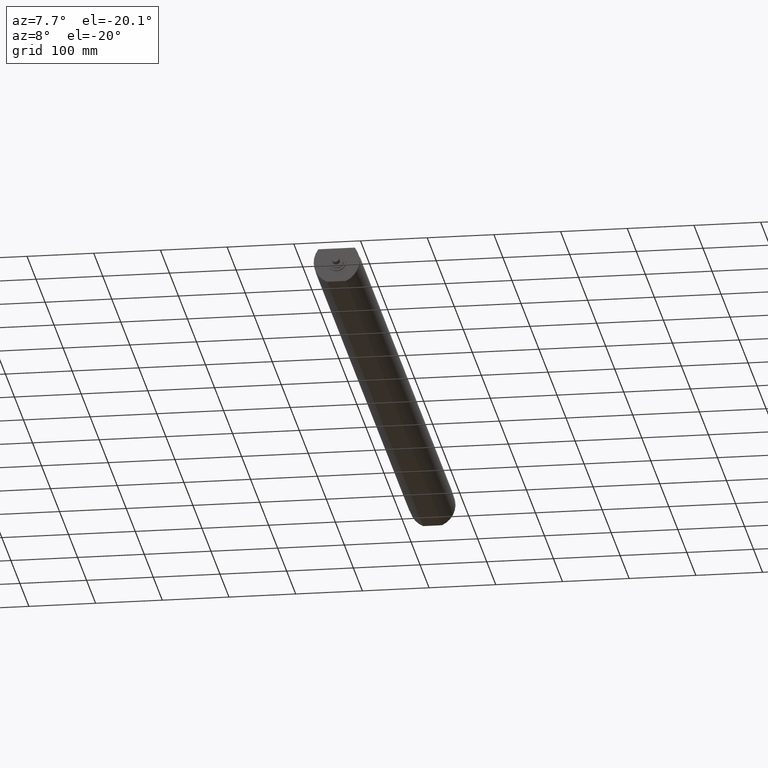
[diagram: clean part render]
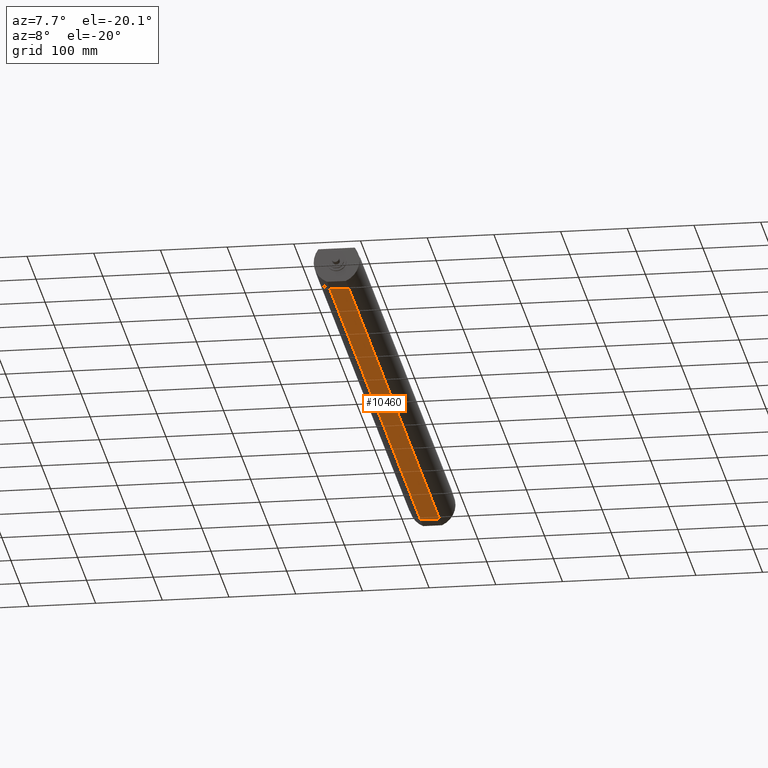
[diagram: same view with one face highlighted and labeled with its STEP entity id]
A machine part, auxiliary view. The second image highlights one B-rep face of the part: STEP entity #10460.
In plain terms, the highlighted planar face has unit normal (-0, -0, -1).
Its self-contained STEP definition (entity closure, byte-faithful):
#9060=CARTESIAN_POINT('',(-14.1774468787578,-32.,32.));
#9070=VERTEX_POINT('',#9060);
#9410=CARTESIAN_POINT('',(14.1774468787578,-32.,32.));
#9420=VERTEX_POINT('',#9410);
#9700=CARTESIAN_POINT('',(0.,-32.,32.0000000000001));
#9710=DIRECTION('',(1.,0.,0.));
#9720=VECTOR('',#9710,1.);
#9730=LINE('',#9700,#9720);
#9740=EDGE_CURVE('',#9070,#9420,#9730,.T.);
#10030=CARTESIAN_POINT('',(-14.1774468787762,-32.0000000000869,
1037.99999999644));
#10040=VERTEX_POINT('',#10030);
#10070=CARTESIAN_POINT('',(-14.1774468787578,-32.,1038.5));
#10080=DIRECTION('',(0.,0.,1.));
#10090=VECTOR('',#10080,1.);
#10100=LINE('',#10070,#10090);
#10110=EDGE_CURVE('',#9070,#10040,#10100,.T.);
#10230=CARTESIAN_POINT('',(14.8863258376962,-32.,1063.15000661136));
#10240=DIRECTION('',(-0.,-1.,-0.));
#10250=DIRECTION('',(-1.,0.,0.));
#10260=AXIS2_PLACEMENT_3D('',#10230,#10240,#10250);
#10270=PLANE('',#10260);
#10280=ORIENTED_EDGE('',*,*,#10110,.F.);
#10290=CARTESIAN_POINT('',(0.,-32.,1038.));
#10300=DIRECTION('',(1.,0.,0.));
#10310=VECTOR('',#10300,1.);
#10320=LINE('',#10290,#10310);
#10330=CARTESIAN_POINT('',(14.1774463451917,-32.,1037.99999949973));
#10340=VERTEX_POINT('',#10330);
#10350=EDGE_CURVE('',#10040,#10340,#10320,.T.);
#10360=ORIENTED_EDGE('',*,*,#10350,.F.);
#10370=CARTESIAN_POINT('',(14.1774468787578,-32.,1038.5));
#10380=DIRECTION('',(0.,0.,-1.));
#10390=VECTOR('',#10380,1.);
#10400=LINE('',#10370,#10390);
#10410=EDGE_CURVE('',#10340,#9420,#10400,.T.);
#10420=ORIENTED_EDGE('',*,*,#10410,.F.);
#10430=ORIENTED_EDGE('',*,*,#9740,.T.);
#10440=EDGE_LOOP('',(#10430,#10420,#10360,#10280));
#10450=FACE_OUTER_BOUND('',#10440,.T.);
#10460=ADVANCED_FACE('',(#10450),#10270,.T.);